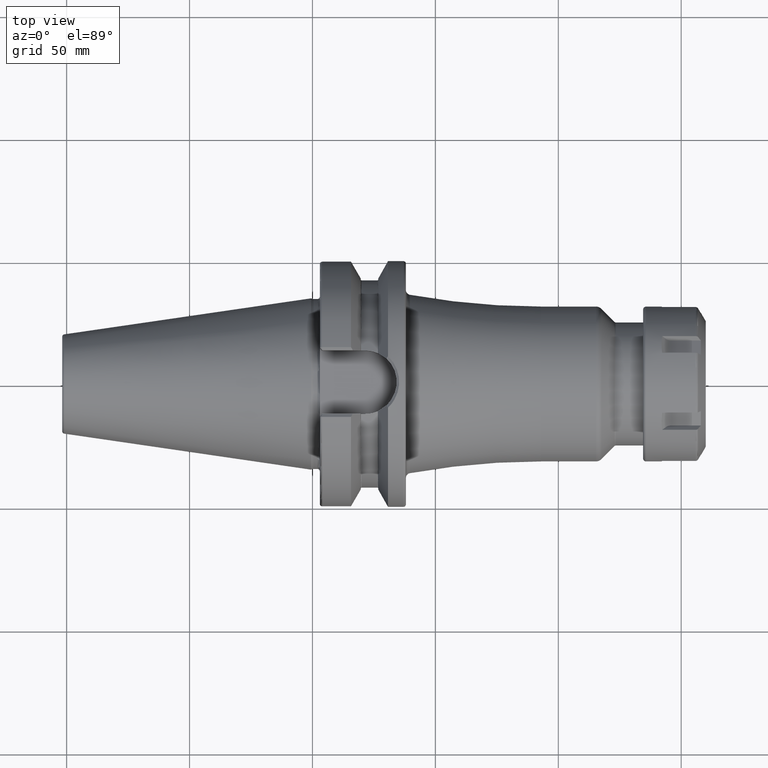
[diagram: clean part render]
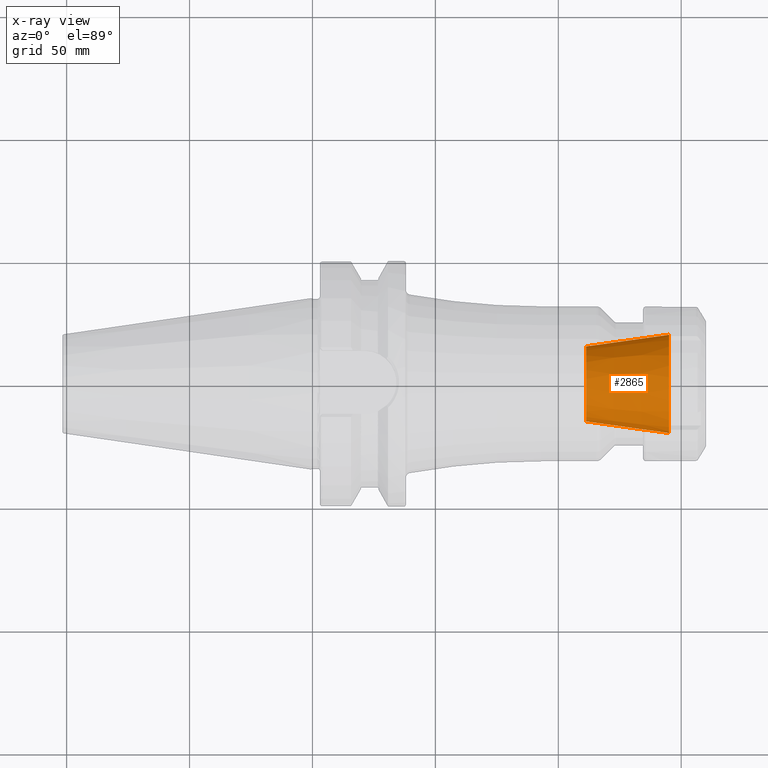
[diagram: x-ray — body ghosted, one internal face saturated and labeled with its STEP entity id]
A machine part, top view, then the same camera in x-ray: the body is ghosted and one INTERNAL B-rep face — a face not visible from any outside direction — is saturated and labeled: STEP entity #2865.
In plain terms, the highlighted conical surface has half-angle 8 deg.
Its self-contained STEP definition (entity closure, byte-faithful):
#978=CARTESIAN_POINT('',(1.451E2,0.E0,0.E0));
#979=DIRECTION('',(1.E0,0.E0,0.E0));
#980=DIRECTION('',(0.E0,1.E0,0.E0));
#981=AXIS2_PLACEMENT_3D('',#978,#979,#980);
#988=DIRECTION('',(-9.902680687416E-1,-1.391731009601E-1,0.E0));
#989=VECTOR('',#988,3.413015853806E1);
#990=CARTESIAN_POINT('',(1.451E2,2.E1,0.E0));
#991=LINE('',#990,#989);
#992=DIRECTION('',(-9.902680687416E-1,1.391731009601E-1,0.E0));
#993=VECTOR('',#992,3.413015853806E1);
#994=CARTESIAN_POINT('',(1.451E2,-2.E1,0.E0));
#995=LINE('',#994,#993);
#1009=CARTESIAN_POINT('',(1.113019938187E2,0.E0,0.E0));
#1010=DIRECTION('',(1.E0,0.E0,0.E0));
#1011=DIRECTION('',(0.E0,1.E0,0.E0));
#1012=AXIS2_PLACEMENT_3D('',#1009,#1010,#1011);
#1471=CARTESIAN_POINT('',(1.113019938187E2,1.525E1,0.E0));
#1473=VERTEX_POINT('',#1471);
#1475=CARTESIAN_POINT('',(1.113019938187E2,-1.525E1,0.E0));
#1477=VERTEX_POINT('',#1475);
#1479=CARTESIAN_POINT('',(1.451E2,2.E1,0.E0));
#1480=VERTEX_POINT('',#1479);
#1481=CARTESIAN_POINT('',(1.451E2,-2.E1,0.E0));
#1482=VERTEX_POINT('',#1481);
#2851=CARTESIAN_POINT('',(1.282009969093E2,0.E0,0.E0));
#2852=DIRECTION('',(1.E0,0.E0,0.E0));
#2853=DIRECTION('',(0.E0,-1.E0,0.E0));
#2854=AXIS2_PLACEMENT_3D('',#2851,#2852,#2853);
#2855=CONICAL_SURFACE('',#2854,1.7625E1,8.E0);
#2857=ORIENTED_EDGE('',*,*,#2856,.T.);
#2859=ORIENTED_EDGE('',*,*,#2858,.T.);
#2861=ORIENTED_EDGE('',*,*,#2860,.F.);
#2862=ORIENTED_EDGE('',*,*,#2844,.F.);
#2863=EDGE_LOOP('',(#2857,#2859,#2861,#2862));
#2864=FACE_OUTER_BOUND('',#2863,.F.);
#2865=ADVANCED_FACE('',(#2864),#2855,.F.);
#982=CIRCLE('',#981,2.E1);
#1013=CIRCLE('',#1012,1.525E1);
#2844=EDGE_CURVE('',#1480,#1482,#982,.T.);
#2856=EDGE_CURVE('',#1480,#1473,#991,.T.);
#2858=EDGE_CURVE('',#1473,#1477,#1013,.T.);
#2860=EDGE_CURVE('',#1482,#1477,#995,.T.);